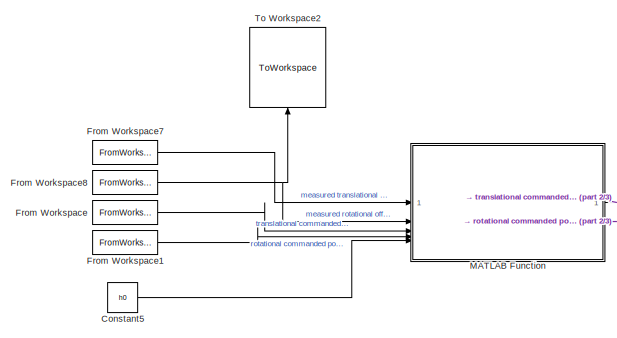
[diagram: root canvas - part 1/3, top left region]
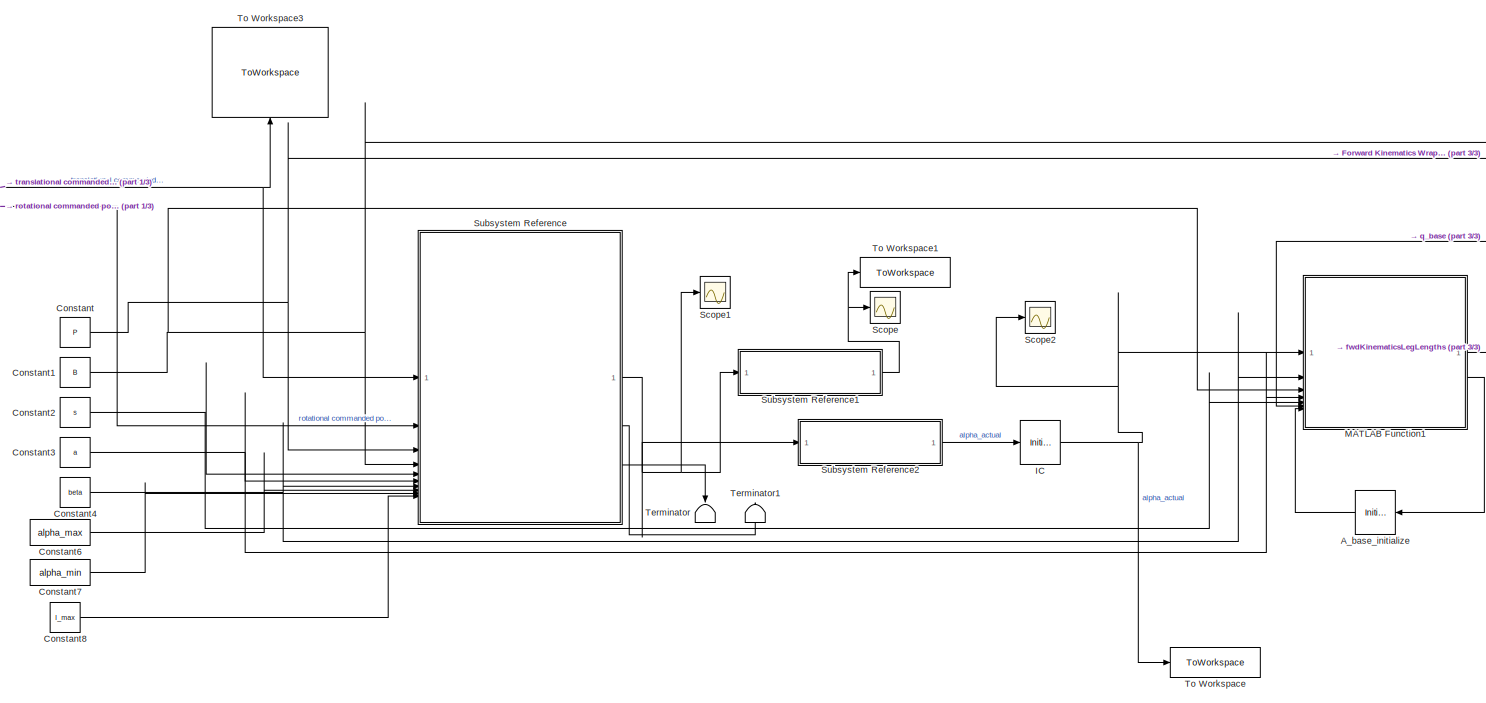
[diagram: root canvas - part 2/3, center side, full height]
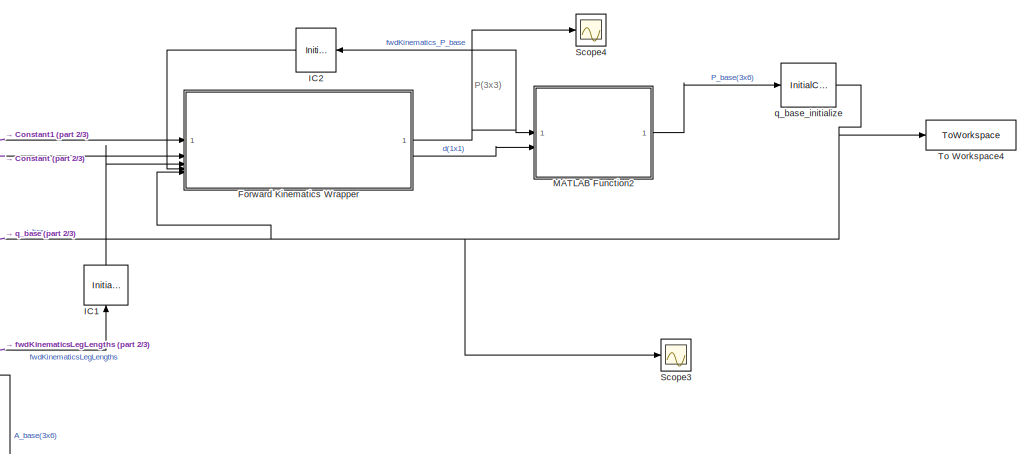
[diagram: root canvas - part 3/3, middle right region]
MODEL slx_f008079b7150
KIND model
CONFIG AbsTol = auto
CONFIG EnableMultiTasking = off
CONFIG FixedStep = stepSize
CONFIG MaxStep = auto
CONFIG MinStep = auto
CONFIG RelTol = 1e-3
CONFIG SampleTimeConstraint = Unconstrained
CONFIG SolverName = VariableStepAuto
CONFIG StartTime = 0.0
CONFIG StopTime = TF
BLOCK [InitialCondition] A_base_initialize
  Value = A0
BLOCK [Constant] Constant
  Value = P
BLOCK [Constant] Constant1
  Value = B
BLOCK [Constant] Constant2
  Value = s
BLOCK [Constant] Constant3
  Value = a
BLOCK [Constant] Constant4
  Value = beta
BLOCK [Constant] Constant5
  Value = h0
BLOCK [Constant] Constant6
  Value = alpha_max
BLOCK [Constant] Constant7
  Value = alpha_min
BLOCK [Constant] Constant8
  Value = l_max
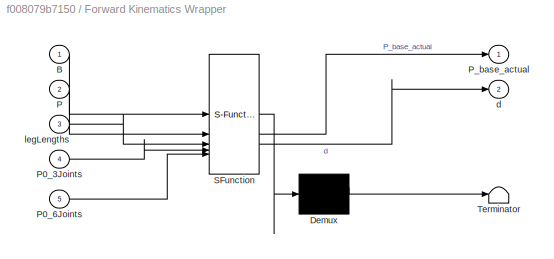
BLOCK [SubSystem] Forward Kinematics Wrapper
  ErrorFcn = Stateflow.Translate.translate
  LibrarySourceBlock = simulink/User-Defined\nFunctions/MATLAB Function
  PermitHierarchicalResolution = ExplicitOnly
  SFBlockType = MATLAB Function
  TreatAsAtomicUnit = on
BLOCK [Demux] Forward Kinematics Wrapper/ Demux 
  Outputs = 1
BLOCK [S-Function] Forward Kinematics Wrapper/ SFunction 
  EnableBusSupport = on
  FunctionName = sf_sfun
  PortCounts = [5 3]
  SFcnIsStateOwnerBlock = off
  SFunctionDeploymentMode = off
  Tag = Stateflow S-Function 5
BLOCK [Terminator] Forward Kinematics Wrapper/ Terminator 
BLOCK [Inport] Forward Kinematics Wrapper/B
BLOCK [Inport] Forward Kinematics Wrapper/P
  Port = 2
BLOCK [Inport] Forward Kinematics Wrapper/P0_3Joints
  Port = 4
BLOCK [Inport] Forward Kinematics Wrapper/P0_6Joints
  Port = 5
BLOCK [Outport] Forward Kinematics Wrapper/P_base_actual
BLOCK [Outport] Forward Kinematics Wrapper/d
  Port = 2
BLOCK [Inport] Forward Kinematics Wrapper/legLengths
  Port = 3
BLOCK [FromWorkspace] From Workspace
  VariableName = T_base
BLOCK [FromWorkspace] From Workspace1
  VariableName = Phi_base
BLOCK [FromWorkspace] From Workspace7
  VariableName = T_inertial
BLOCK [FromWorkspace] From Workspace8
  VariableName = Phi_inertial
BLOCK [InitialCondition] IC
  Value = alpha0
BLOCK [InitialCondition] IC1
  NameLocation = right
  Value = defaultLegs
BLOCK [InitialCondition] IC2
  Value = [0 0 0;0 0 0;0 0 0]
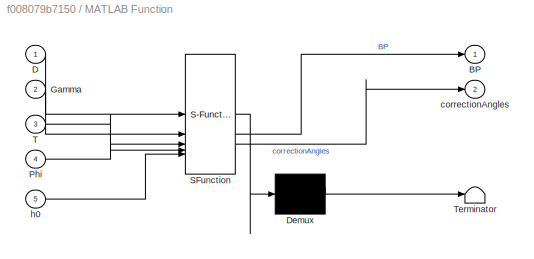
BLOCK [SubSystem] MATLAB Function
  ErrorFcn = Stateflow.Translate.translate
  LibrarySourceBlock = simulink/User-Defined\nFunctions/MATLAB Function
  PermitHierarchicalResolution = ExplicitOnly
  SFBlockType = MATLAB Function
  TreatAsAtomicUnit = on
BLOCK [Demux] MATLAB Function/ Demux 
  Outputs = 1
BLOCK [S-Function] MATLAB Function/ SFunction 
  EnableBusSupport = on
  FunctionName = sf_sfun
  PortCounts = [5 3]
  SFcnIsStateOwnerBlock = off
  SFunctionDeploymentMode = off
  Tag = Stateflow S-Function 1
BLOCK [Terminator] MATLAB Function/ Terminator 
BLOCK [Outport] MATLAB Function/BP
BLOCK [Inport] MATLAB Function/D
BLOCK [Inport] MATLAB Function/Gamma
  Port = 2
BLOCK [Inport] MATLAB Function/Phi
  Port = 4
BLOCK [Inport] MATLAB Function/T
  Port = 3
BLOCK [Outport] MATLAB Function/correctionAngles
  Port = 2
BLOCK [Inport] MATLAB Function/h0
  Port = 5
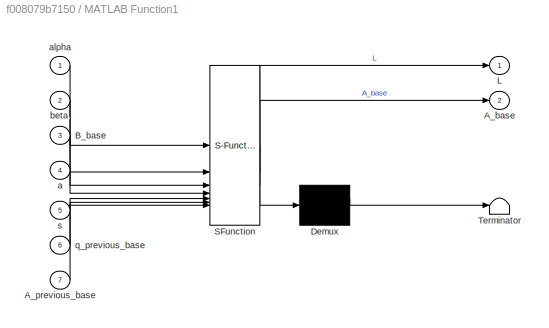
BLOCK [SubSystem] MATLAB Function1
  ErrorFcn = Stateflow.Translate.translate
  LibrarySourceBlock = simulink/User-Defined\nFunctions/MATLAB Function
  PermitHierarchicalResolution = ExplicitOnly
  SFBlockType = MATLAB Function
  TreatAsAtomicUnit = on
BLOCK [Demux] MATLAB Function1/ Demux 
  Outputs = 1
BLOCK [S-Function] MATLAB Function1/ SFunction 
  EnableBusSupport = on
  FunctionName = sf_sfun
  PortCounts = [7 3]
  SFcnIsStateOwnerBlock = off
  SFunctionDeploymentMode = off
  Tag = Stateflow S-Function 6
BLOCK [Terminator] MATLAB Function1/ Terminator 
BLOCK [Outport] MATLAB Function1/A_base
  Port = 2
BLOCK [Inport] MATLAB Function1/A_previous_base
  Port = 7
BLOCK [Inport] MATLAB Function1/B_base
  Port = 3
BLOCK [Outport] MATLAB Function1/L
BLOCK [Inport] MATLAB Function1/a
  Port = 4
BLOCK [Inport] MATLAB Function1/alpha
BLOCK [Inport] MATLAB Function1/beta
  Port = 2
BLOCK [Inport] MATLAB Function1/q_previous_base
  Port = 6
BLOCK [Inport] MATLAB Function1/s
  Port = 5
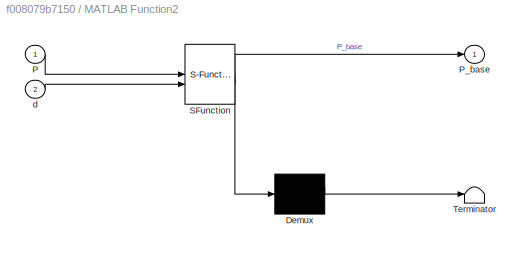
BLOCK [SubSystem] MATLAB Function2
  ErrorFcn = Stateflow.Translate.translate
  LibrarySourceBlock = simulink/User-Defined\nFunctions/MATLAB Function
  PermitHierarchicalResolution = ExplicitOnly
  SFBlockType = MATLAB Function
  TreatAsAtomicUnit = on
BLOCK [Demux] MATLAB Function2/ Demux 
  Outputs = 1
BLOCK [S-Function] MATLAB Function2/ SFunction 
  EnableBusSupport = on
  FunctionName = sf_sfun
  PortCounts = [2 2]
  SFcnIsStateOwnerBlock = off
  SFunctionDeploymentMode = off
  Tag = Stateflow S-Function 7
BLOCK [Terminator] MATLAB Function2/ Terminator 
BLOCK [Inport] MATLAB Function2/P
BLOCK [Outport] MATLAB Function2/P_base
BLOCK [Inport] MATLAB Function2/d
  Port = 2
BLOCK [Scope] Scope
  Floating = off
  NumInputPorts = 1
  ScopeSpecificationString = Simulink.scopes.TimeScopeBlockCfg('CurrentConfiguration', extmgr.ConfigurationSet(extmgr.Configuration('Core','General UI',true),extmgr.Configuration('Core','Source UI',true),extmgr.Configuration('Sources','WiredSimulink',true,'DataLoggingVariableName','ScopeData9'),extmgr.Configuration('Visuals','Time Domain',true,'SerializedDisplays',{struct('MinYLimReal','0.00000','MaxYLimReal','1.02794','YLabe...<+1613ch>
BLOCK [Scope] Scope1
  Floating = off
  NumInputPorts = 1
  ScopeSpecificationString = Simulink.scopes.TimeScopeBlockCfg('CurrentConfiguration', extmgr.ConfigurationSet(extmgr.Configuration('Core','General UI',true),extmgr.Configuration('Core','Source UI',true),extmgr.Configuration('Sources','WiredSimulink',true,'DataLoggingVariableName','ScopeData10'),extmgr.Configuration('Visuals','Time Domain',true,'SerializedDisplays',{struct('MinYLimReal','-75.61599','MaxYLimReal','36.31166','Y...<+1543ch>
BLOCK [Scope] Scope2
  Floating = off
  NumInputPorts = 1
  ScopeSpecificationString = Simulink.scopes.TimeScopeBlockCfg('CurrentConfiguration', extmgr.ConfigurationSet(extmgr.Configuration('Core','General UI',true),extmgr.Configuration('Core','Source UI',true),extmgr.Configuration('Sources','WiredSimulink',true,'DataLoggingVariableName','ScopeData12'),extmgr.Configuration('Visuals','Time Domain',true,'SerializedDisplays',{struct('MinYLimReal','1.3085','MaxYLimReal','3.3085','YLabel...<+1491ch>
BLOCK [Scope] Scope3
  Floating = off
  NumInputPorts = 1
  ScopeSpecificationString = Simulink.scopes.TimeScopeBlockCfg('CurrentConfiguration', extmgr.ConfigurationSet(extmgr.Configuration('Core','General UI',true),extmgr.Configuration('Core','Source UI',true),extmgr.Configuration('Sources','WiredSimulink',true,'DataLoggingVariableName','ScopeData7'),extmgr.Configuration('Visuals','Time Domain',true),extmgr.Configuration('Tools','Plot Navigation',true),extmgr.Configuration('Tools',...<+58ch>
BLOCK [Scope] Scope4
  Floating = off
  NumInputPorts = 1
  ScopeSpecificationString = Simulink.scopes.TimeScopeBlockCfg('CurrentConfiguration', extmgr.ConfigurationSet(extmgr.Configuration('Core','General UI',true),extmgr.Configuration('Core','Source UI',true),extmgr.Configuration('Sources','WiredSimulink',true,'DataLoggingVariableName','ScopeData7'),extmgr.Configuration('Visuals','Time Domain',true),extmgr.Configuration('Tools','Plot Navigation',true),extmgr.Configuration('Tools',...<+40ch>
BLOCK [SubSystem] Subsystem Reference
  ReferencedSubsystem = StewartPlatformInverseKinematics
BLOCK [SubSystem] Subsystem Reference1
  ReferencedSubsystem = MyRio__block
BLOCK [SubSystem] Subsystem Reference2
  ReferencedSubsystem = Servo_Block
BLOCK [Terminator] Terminator
  NameLocation = left
BLOCK [Terminator] Terminator1
  NameLocation = left
BLOCK [ToWorkspace] To Workspace
  FixptAsFi = on
  MaxDataPoints = inf
  SampleTime = -1
  SaveFormat = Timeseries
  VariableName = actualServoAngles
BLOCK [ToWorkspace] To Workspace1
  FixptAsFi = on
  MaxDataPoints = inf
  SampleTime = -1
  SaveFormat = Timeseries
  VariableName = PWM_Signals
BLOCK [ToWorkspace] To Workspace2
  FixptAsFi = on
  MaxDataPoints = inf
  NameLocation = right
  SampleTime = -1
  SaveFormat = Timeseries
  VariableName = Phi_inertial
BLOCK [ToWorkspace] To Workspace3
  FixptAsFi = on
  MaxDataPoints = inf
  NameLocation = right
  SampleTime = -1
  SaveFormat = Timeseries
  VariableName = commandedPosition
BLOCK [ToWorkspace] To Workspace4
  FixptAsFi = on
  MaxDataPoints = inf
  SampleTime = -1
  SaveFormat = Timeseries
  VariableName = ActualPlatform
BLOCK [InitialCondition] q_base_initialize
  Value = P_default
ANNOTATION (root): P(3x3)
LINE A_base_initialize:1 -> MATLAB Function1:7
NET Constant1:1 -> Forward Kinematics Wrapper:1, MATLAB Function1:3, Subsystem Reference:4
NET Constant2:1 -> MATLAB Function1:5, Subsystem Reference:5
NET Constant3:1 -> MATLAB Function1:4, Subsystem Reference:6
NET Constant4:1 -> MATLAB Function1:2, Subsystem Reference:7
LINE Constant5:1 -> MATLAB Function:5
LINE Constant6:1 -> Subsystem Reference:8
LINE Constant7:1 -> Subsystem Reference:9
LINE Constant8:1 -> Subsystem Reference:10
NET Constant:1 -> Forward Kinematics Wrapper:2, Subsystem Reference:3
NET Forward Kinematics Wrapper:1 -> IC2:1, MATLAB Function2:1, Scope4:1
LINE Forward Kinematics Wrapper:2 -> MATLAB Function2:2
LINE From Workspace1:1 -> MATLAB Function:4
LINE From Workspace7:1 -> MATLAB Function:1
NET From Workspace8:1 -> MATLAB Function:2, To Workspace2:1
LINE From Workspace:1 -> MATLAB Function:3
LINE IC1:1 -> Forward Kinematics Wrapper:3
LINE IC2:1 -> Forward Kinematics Wrapper:4
NET IC:1 -> MATLAB Function1:1, Scope2:1, To Workspace:1
LINE MATLAB Function1:1 -> IC1:1
LINE MATLAB Function1:2 -> A_base_initialize:1
LINE MATLAB Function2:1 -> q_base_initialize:1
NET MATLAB Function:1 -> Subsystem Reference:1, To Workspace3:1
LINE MATLAB Function:2 -> Subsystem Reference:2
NET Subsystem Reference1:1 -> Scope:1, To Workspace1:1
LINE Subsystem Reference2:1 -> IC:1
NET Subsystem Reference:1 -> Scope1:1, Subsystem Reference1:1, Subsystem Reference2:1
LINE Subsystem Reference:2 -> Terminator1:1
LINE Subsystem Reference:3 -> Terminator:1
NET q_base_initialize:1 -> Forward Kinematics Wrapper:5, MATLAB Function1:6, Scope3:1, To Workspace4:1
note: NET lines group one-source signal fan-out (src -> all destinations, sorted); 1:1 wires keep LINE
CHART MATLAB Function states=1 transitions=1
  STATE_LABEL 'eML_blk_kernel()'
  STATE_LABEL "SCRIPT:\nfunction [BP, correctionAngles] = baseToStaticPlatformPosition(D,Gamma,T,Phi,h0)\n% calculate angle offset from inertial frame\ngammaX = Gamma(1) + Phi(1);\ngammaY = Gamma(2) + Phi(2);\ngammaZ = Gamma(3) + Phi(3);\n\nOP = T+[0;0;h0]; % vector from origin of inertial frame (O) to origin of platform (P)\n\nR = rotz(gammaZ)*roty(gammaY)*rotx(gammaX); % 3x3 rotation matrix\n\nBP = D + R'*(OP - D); %BP i...<+74ch>"
CHART Forward Kinematics Wrapper states=1 transitions=1
  STATE_LABEL 'eML_blk_kernel()'
  STATE_LABEL 'SCRIPT:\nfunction [P_base_actual,d]  = forwardKinematicsWrapper(B,P,legLengths, P0_3Joints, P0_6Joints)\n\nif P0_3Joints(3) ~= 0\n    P_input = P0_3Joints;\nelse\n    P_input = P0_6Joints;\nend\n\n[P_base_actual,d] = forwardKinematics(B,P,legLengths,P_input);\n% P0_3Joints\n% legLengths\n% P_base_actual\n'
CHART MATLAB Function1 states=1 transitions=1
  STATE_LABEL 'eML_blk_kernel()'
  STATE_LABEL 'SCRIPT:\nfunction [L, A_base] = alpha2legLengthWrapper(alpha, beta, B_base, a, s, q_previous_base, A_previous_base)\n% alpha\n[L, A_base] = alpha2legLength(alpha, beta, B_base, a, s, q_previous_base, A_previous_base);\n% q_previous_base\n% A_previous_base\n% L\n'
CHART MATLAB Function2 states=1 transitions=1
  STATE_LABEL 'eML_blk_kernel()'
  STATE_LABEL 'SCRIPT:\nfunction P_base = find6PWrapper(P,d)\n% P\nP_base = find6P(P,d);\n% P_base\n'
CHART  states=0 transitions=0
CHART  states=0 transitions=0
CHART  states=0 transitions=0
CHART  states=0 transitions=0
